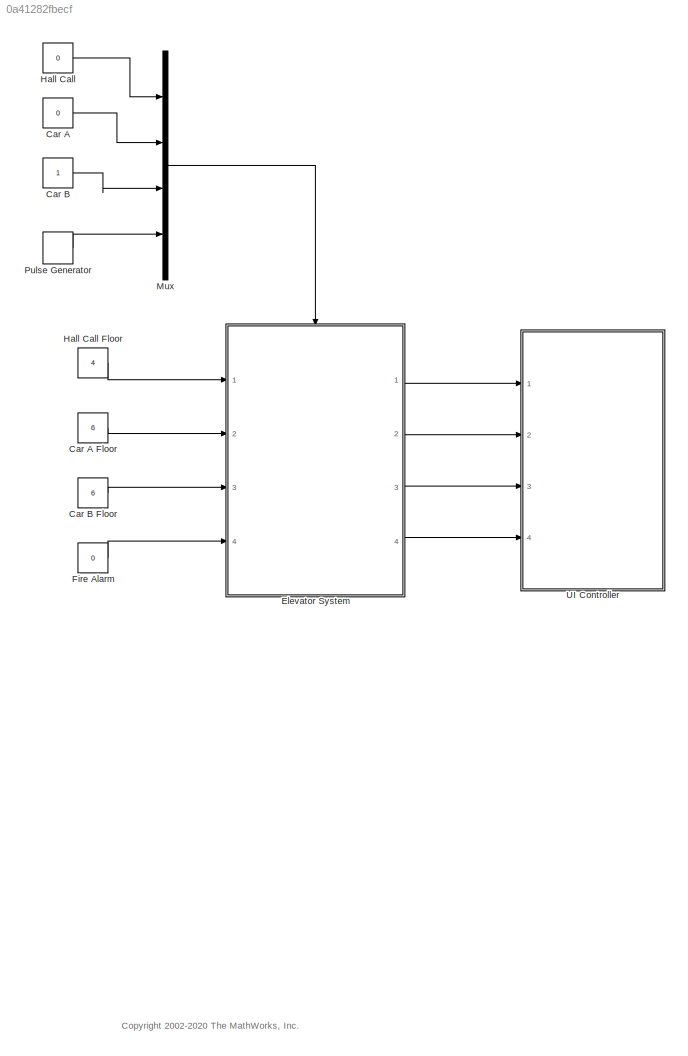
MODEL slx_0a41282fbecf
KIND model
CONFIG AbsTol = auto
CONFIG EnableMultiTasking = off
CONFIG FixedStep = auto
CONFIG MaxStep = auto
CONFIG MinStep = auto
CONFIG RelTol = 1e-3
CONFIG SampleTimeConstraint = Unconstrained
CONFIG Solver = VariableStepAuto
CONFIG SolverName = VariableStepAuto
CONFIG StartTime = 0.0
CONFIG StopTime = inf
BLOCK [Constant] Car A
  OutDataTypeStr = double
  Value = 0
BLOCK [Constant] Car A Floor
  OutDataTypeStr = uint8
  Value = 6
BLOCK [Constant] Car B
  OutDataTypeStr = double
BLOCK [Constant] Car B Floor
  OutDataTypeStr = uint8
  Value = 6
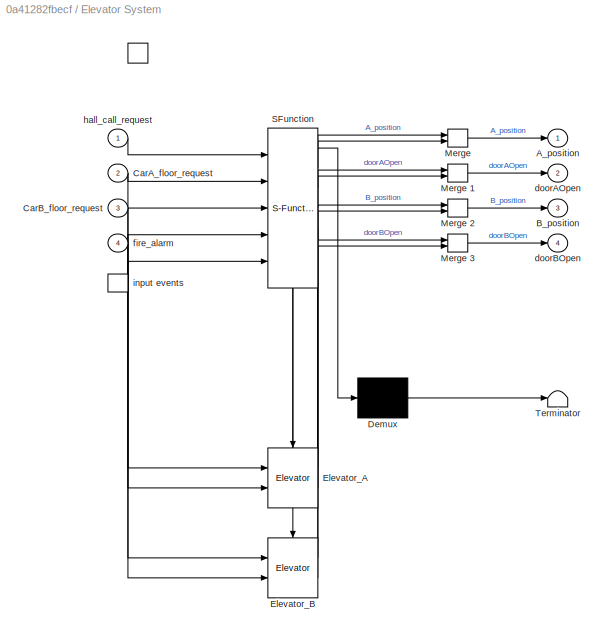
BLOCK [SubSystem] Elevator System
  ErrorFcn = Stateflow.Translate.translate
  PermitHierarchicalResolution = ExplicitOnly
  Ports = [4, 4, 0, 1]
  RequestExecContextInheritance = off
  SFBlockType = Chart
  TreatAsAtomicUnit = on
BLOCK [DataStoreMemory] Elevator System/ 
  DataStoreName = hall_call_status
  Dimensions = [10]
  OutDataTypeStr = uint8
  ShowAdditionalParam = off
  SignalType = real
BLOCK [Demux] Elevator System/ Demux 
  Outputs = 1
  Ports = [1, 1]
BLOCK [Merge] Elevator System/ Merge 
  Ports = [2, 1]
BLOCK [Merge] Elevator System/ Merge 1
  Ports = [2, 1]
BLOCK [Merge] Elevator System/ Merge 2
  Ports = [2, 1]
BLOCK [Merge] Elevator System/ Merge 3
  Ports = [2, 1]
BLOCK [S-Function] Elevator System/ SFunction 
  EnableBusSupport = on
  FunctionName = sf_sfun
  PortCounts = [5 7]
  Ports = [5, 7]
  SFcnIsStateOwnerBlock = off
  SFunctionDeploymentMode = off
  Tag = Stateflow S-Function 1
BLOCK [Terminator] Elevator System/ Terminator 
BLOCK [TriggerPort] Elevator System/ input events 
  Ports = [0, 1]
  ShowOutputPort = on
  TriggerType = either
  VariantControl = Variant
BLOCK [Outport] Elevator System/A_position
  VectorParamsAs1DForOutWhenUnconnected = off
BLOCK [Outport] Elevator System/B_position
  Port = 3
  VectorParamsAs1DForOutWhenUnconnected = off
BLOCK [Inport] Elevator System/CarA_floor_request
  Port = 2
BLOCK [Inport] Elevator System/CarB_floor_request
  Port = 3
BLOCK [Reference] Elevator System/Elevator_A  REF=sf_elevator_lib/Elevator  (lib defined in slx_90066fb60141)
  Ports = [2, 2, 0, 1]
  SourceBlock = sf_elevator_lib/Elevator
  SourceProductBaseCode = SL
BLOCK [Reference] Elevator System/Elevator_B  REF=sf_elevator_lib/Elevator  (lib defined in slx_90066fb60141)
  Ports = [2, 2, 0, 1]
  SourceBlock = sf_elevator_lib/Elevator
  SourceProductBaseCode = SL
BLOCK [Outport] Elevator System/doorAOpen
  Port = 2
  VectorParamsAs1DForOutWhenUnconnected = off
BLOCK [Outport] Elevator System/doorBOpen
  Port = 4
  VectorParamsAs1DForOutWhenUnconnected = off
BLOCK [Inport] Elevator System/fire_alarm
  Port = 4
BLOCK [Inport] Elevator System/hall_call_request
BLOCK [Constant] Fire Alarm
  OutDataTypeStr = boolean
  Value = 0
BLOCK [Constant] Hall Call
  OutDataTypeStr = double
  Value = 0
BLOCK [Constant] Hall Call Floor
  OutDataTypeStr = uint8
  Value = 4
BLOCK [Mux] Mux
  DisplayOption = bar
  Ports = [4, 1]
BLOCK [DiscretePulseGenerator] Pulse Generator
  Ports = [0, 1]
  PulseType = Time based
  PulseWidth = 50
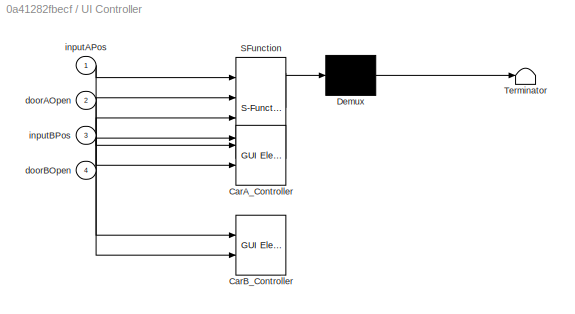
BLOCK [SubSystem] UI Controller
  ErrorFcn = Stateflow.Translate.translate
  PermitHierarchicalResolution = ExplicitOnly
  Ports = [4]
  RequestExecContextInheritance = off
  SFBlockType = Chart
  TreatAsAtomicUnit = on
BLOCK [Demux] UI Controller/ Demux 
  Outputs = 1
  Ports = [1, 1]
BLOCK [S-Function] UI Controller/ SFunction 
  EnableBusSupport = on
  FunctionName = sf_sfun
  Parameters = allCarIds
  PortCounts = [4 1]
  Ports = [4, 1]
  SFcnIsStateOwnerBlock = off
  SFunctionDeploymentMode = off
  Tag = Stateflow S-Function 4
BLOCK [Terminator] UI Controller/ Terminator 
BLOCK [Reference] UI Controller/CarA_Controller  REF=sf_gui_elevator_controller_lib/GUI Elevator Car Controller  (lib defined in slx_05f2a8f2ffc9)
  Ports = [2]
  SourceBlock = sf_gui_elevator_controller_lib/GUI Elevator Car Controller
  SourceProductBaseCode = SL
BLOCK [Reference] UI Controller/CarB_Controller  REF=sf_gui_elevator_controller_lib/GUI Elevator Car Controller  (lib defined in slx_05f2a8f2ffc9)
  Ports = [2]
  SourceBlock = sf_gui_elevator_controller_lib/GUI Elevator Car Controller
  SourceProductBaseCode = SL
BLOCK [Inport] UI Controller/doorAOpen
  Port = 2
BLOCK [Inport] UI Controller/doorBOpen
  Port = 4
BLOCK [Inport] UI Controller/inputAPos
BLOCK [Inport] UI Controller/inputBPos
  Port = 3
ANNOTATION (root): <copyright redacted>
LINE Car A Floor:1 -> Elevator System:2
LINE Car A:1 -> Mux:2
LINE Car B Floor:1 -> Elevator System:3
LINE Car B:1 -> Mux:3
LINE Elevator System:1 -> UI Controller:1
LINE Elevator System:2 -> UI Controller:2
LINE Elevator System:3 -> UI Controller:3
LINE Elevator System:4 -> UI Controller:4
LINE Fire Alarm:1 -> Elevator System:4
LINE Hall Call Floor:1 -> Elevator System:1
LINE Hall Call:1 -> Mux:1
LINE Mux:1 -> Elevator System:trigger
LINE Pulse Generator:1 -> Mux:4
CHART Elevator System states=9 transitions=52
  STATE_LABEL 'Elevator_Manager'
  STATE_LABEL 'register(hall_call_floor)'
  STATE_LABEL '{enqueue(hall_call_floor);\nhall_call_status[hall_call_floor] = 1;}'
  STATE_LABEL 'enqueue(hall_call_floor)'
  STATE_LABEL '[hall_call_status[hall_call_floor] != 0]'
  STATE_LABEL '{i = 0;}'
  STATE_LABEL '[hall_call_queue[i] == hall_call_floor]'
  STATE_LABEL '[hall_call_queue[i] > 0 && i<NUM_FLOOR]{i++;}'
  STATE_LABEL '[i >= NUM_FLOOR]'
  STATE_LABEL '{hall_call_queue[i] = hall_call_floor;}'
  STATE_LABEL 'process_hall_call'
  STATE_LABEL "{\n/* 'INIT':Initialization */\nrequest_floor = hall_call_queue[0];\n}"
  STATE_LABEL '{\n/* Fire alarm is on */\nfire_alarm_on = (fire_alarm);\n}'
  STATE_LABEL '{\n/* There is outstanding request */\nrequest_outstanding = (request_floor > 0);\n}'
  STATE_LABEL '{\n/* Elevator A is idle */\nelevator_A_idle = (Elevator_A.get_status() == ElevatorStatus.IDLE);\n}'
  STATE_LABEL '{\n/* Elevator B is idle */\nelevator_B_idle = (Elevator_B.get_status() == ElevatorStatus.IDLE);\n}'
  STATE_LABEL '{\n/* Elevator A is closer to request */\nelevator_A_closer = (fabs(Elevator_A.get_position() - request_floor) <= fabs(Elevator_B.get_position() - request_floor));\n}'
  STATE_LABEL '[fire_alarm_on]'
  STATE_LABEL "{\n/* 'EMR':Emergency */\nElevator_A.register(floor(Elevator_A.get_position()+Elevator_A.get_direction()/2));\nElevator_B.register(floor(Elevator_B.get_position()+Elevator_B.get_direction()/2));\n}"
  STATE_LABEL '[!request_outstanding]'
  STATE_LABEL "{\n/* 'NONE':Both elevators are busy, OR no request present */\n\n}"
  STATE_LABEL '[!elevator_A_idle && !elevator_B_idle]'
  STATE_LABEL "{\n/* 'NONE':Both elevators are busy, OR no request present */\n\n}"
  STATE_LABEL '[elevator_A_idle && !elevator_B_idle]'
  STATE_LABEL "{\n/* 'A':Elevator A should respond to request */\nElevator_A.enqueue(request_floor);\nMain_dequeue(request_floor);\n}"
  STATE_LABEL '[!elevator_A_idle && elevator_B_idle]'
  STATE_LABEL "{\n/* 'B':Elevator B should respond to request */\nElevator_B.enqueue(request_floor);\nMain_dequeue(request_floor);\n}"
  STATE_LABEL '[elevator_A_idle && elevator_B_idle && elevator_A_closer]'
  STATE_LABEL "{\n/* 'A':Elevator A should respond to request */\nElevator_A.enqueue(request_floor);\nMain_dequeue(request_floor);\n}"
  STATE_LABEL '[elevator_A_idle && elevator_B_idle && !elevator_A_closer]'
  STATE_LABEL "{\n/* 'B':Elevator B should respond to request */\nElevator_B.enqueue(request_floor);\nMain_dequeue(request_floor);\n}"
  STATE_LABEL 'HALL_CALL {register(hall_call_request);}'
  STATE_LABEL 'CLOCK {process_hall_call();} //Clock drives whole system'
  STATE_LABEL 'register(hall_call_floor)'
  STATE_LABEL '{enqueue(hall_call_floor);\nhall_call_status[hall_call_floor] = 1;}'
  STATE_LABEL 'enqueue(hall_call_floor)'
  STATE_LABEL '[hall_call_status[hall_call_floor] != 0]'
  STATE_LABEL '{i = 0;}'
  STATE_LABEL '[hall_call_queue[i] == hall_call_floor]'
  STATE_LABEL '[hall_call_queue[i] > 0 && i<NUM_FLOOR]{i++;}'
CHART UI Controller states=2 transitions=0
  STATE_LABEL 'CarA_Controller'
  STATE_LABEL 'CarB_Controller'
CHART  states=0 transitions=0
CHART  states=0 transitions=0
